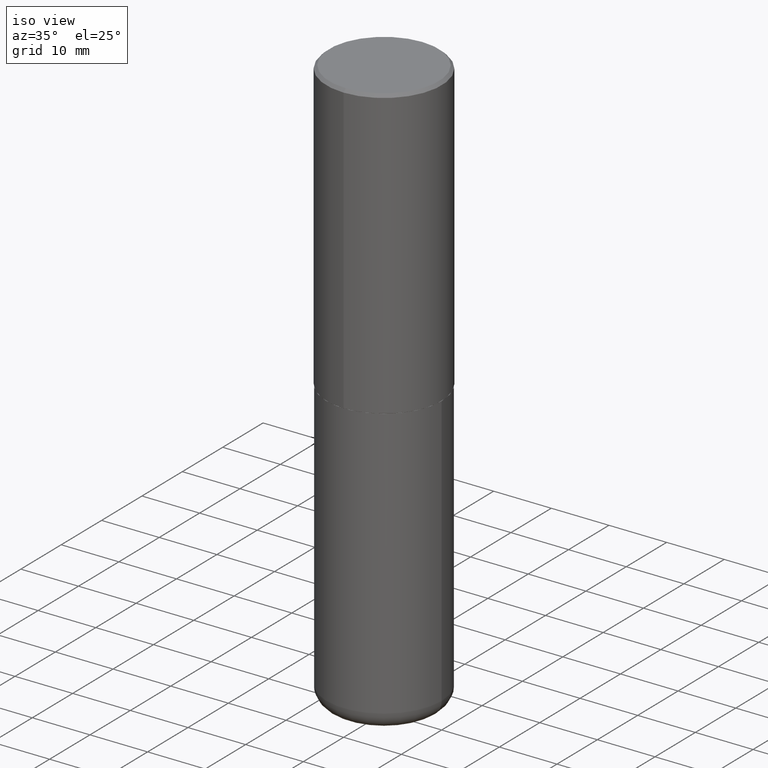
[diagram: clean part render]
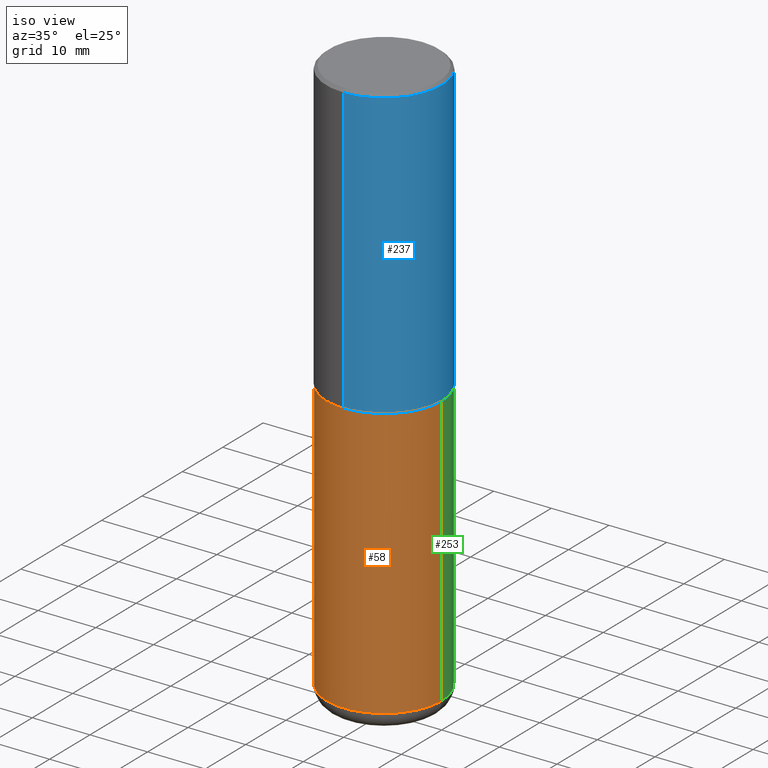
[diagram: same view with three faces highlighted in distinct colors, each labeled with its STEP entity id]
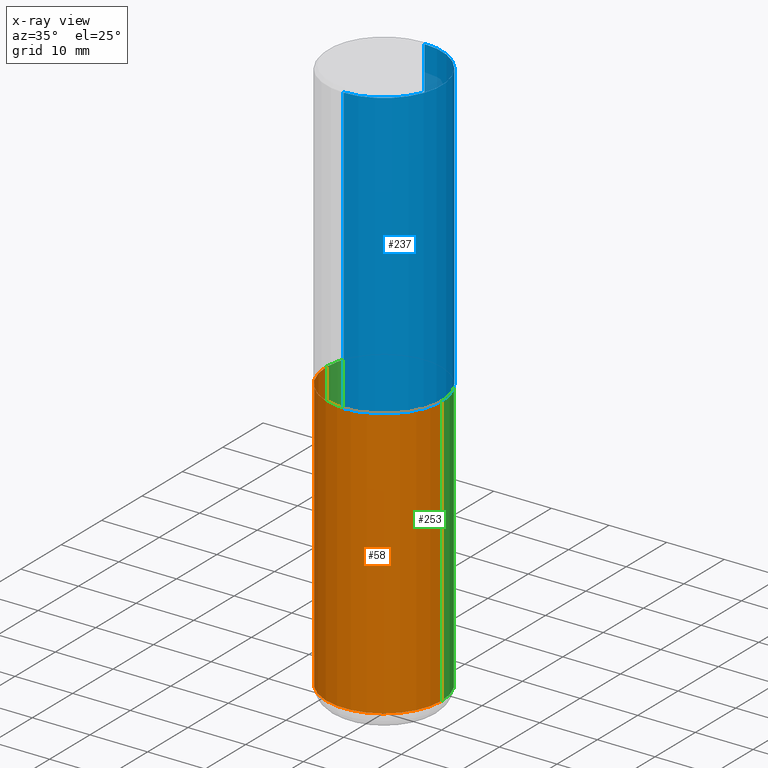
[diagram: x-ray of the same camera — body ghosted, the three highlighted faces saturated]
A machine part, iso view with three faces highlighted in distinct colors.
The next image is the same camera in x-ray (body ghosted, the three faces saturated) — at least one of them is partly hidden behind the body in this view.
Their STEP definitions:

[orange] entity #58 — the highlighted cylindrical surface (partial cylindrical patch) has radius 10 mm, axis along (-0, 0, 1).
#3 = LINE ( 'NONE', #74, #402 ) ;
#13 = CARTESIAN_POINT ( 'NONE',  ( 9.339000823940418668E-29, -1.333361808490808928E-14, -3.818900000000000183 ) ) ;
#31 = EDGE_CURVE ( 'NONE', #228, #99, #3, .T. ) ;
#47 = VERTEX_POINT ( 'NONE', #102 ) ;
#58 = ADVANCED_FACE ( 'NONE', ( #325 ), #155, .T. ) ;
#64 = EDGE_LOOP ( 'NONE', ( #373, #337, #68, #206 ) ) ;
#68 = ORIENTED_EDGE ( 'NONE', *, *, #31, .T. ) ;
#74 = CARTESIAN_POINT ( 'NONE',  ( 0.3937000000000000499, -2.749192406205083217E-15, 1.919750796630860172E-29 ) ) ;
#76 = DIRECTION ( 'NONE',  ( -2.445468806185136877E-29, 3.491481338843145188E-15, 1.000000000000000000 ) ) ;
#99 = VERTEX_POINT ( 'NONE', #169 ) ;
#102 = CARTESIAN_POINT ( 'NONE',  ( -0.3937000000000000499, -1.053621133422057529E-14, -3.818900000000000183 ) ) ;
#105 = DIRECTION ( 'NONE',  ( -2.445468806185136597E-29, 3.491481338843145583E-15, 1.000000000000000000 ) ) ;
#106 = VERTEX_POINT ( 'NONE', #370 ) ;
#122 = EDGE_CURVE ( 'NONE', #106, #99, #273, .T. ) ;
#124 = VECTOR ( 'NONE', #76, 39.37007874015748143 ) ;
#142 = CARTESIAN_POINT ( 'NONE',  ( 0.000000000000000000, 0.000000000000000000, 0.000000000000000000 ) ) ;
#155 = CYLINDRICAL_SURFACE ( 'NONE', #363, 0.3937000000000000499 ) ;
#162 = EDGE_CURVE ( 'NONE', #47, #106, #269, .T. ) ;
#169 = CARTESIAN_POINT ( 'NONE',  ( 0.3937000000000000499, -9.622173421717814924E-15, -1.968500000000000139 ) ) ;
#201 = EDGE_CURVE ( 'NONE', #47, #228, #305, .T. ) ;
#202 = CARTESIAN_POINT ( 'NONE',  ( 4.813905344975441835E-29, -6.872981015512731707E-15, -1.968500000000000139 ) ) ;
#206 = ORIENTED_EDGE ( 'NONE', *, *, #122, .F. ) ;
#207 = DIRECTION ( 'NONE',  ( 1.000000000000000000, -6.982962677686265133E-15, 0.000000000000000000 ) ) ;
#213 = AXIS2_PLACEMENT_3D ( 'NONE', #13, #397, #292 ) ;
#228 = VERTEX_POINT ( 'NONE', #366 ) ;
#235 = CARTESIAN_POINT ( 'NONE',  ( -0.3937000000000000499, 2.797406750687514786E-15, -1.936584745033356735E-29 ) ) ;
#269 = LINE ( 'NONE', #235, #124 ) ;
#273 = CIRCLE ( 'NONE', #328, 0.3937000000000000499 ) ;
#281 = DIRECTION ( 'NONE',  ( 1.000000000000000000, -6.982962677686265922E-15, 4.876176775795935793E-29 ) ) ;
#292 = DIRECTION ( 'NONE',  ( 1.000000000000000000, -6.982962677686267499E-15, 0.000000000000000000 ) ) ;
#305 = CIRCLE ( 'NONE', #213, 0.3937000000000000499 ) ;
#325 = FACE_OUTER_BOUND ( 'NONE', #64, .T. ) ;
#327 = DIRECTION ( 'NONE',  ( -2.445468806185136877E-29, 3.491481338843145188E-15, 1.000000000000000000 ) ) ;
#328 = AXIS2_PLACEMENT_3D ( 'NONE', #202, #364, #207 ) ;
#337 = ORIENTED_EDGE ( 'NONE', *, *, #201, .T. ) ;
#363 = AXIS2_PLACEMENT_3D ( 'NONE', #142, #105, #281 ) ;
#364 = DIRECTION ( 'NONE',  ( -2.445468806185136597E-29, 3.491481338843145583E-15, 1.000000000000000000 ) ) ;
#366 = CARTESIAN_POINT ( 'NONE',  ( 0.3937000000000000499, -1.608281049111317408E-14, -3.818900000000000183 ) ) ;
#370 = CARTESIAN_POINT ( 'NONE',  ( -0.3937000000000000499, -7.305892799522895709E-15, -1.968500000000000139 ) ) ;
#373 = ORIENTED_EDGE ( 'NONE', *, *, #162, .F. ) ;
#397 = DIRECTION ( 'NONE',  ( -2.445468806185136597E-29, 3.491481338843145583E-15, 1.000000000000000000 ) ) ;
#402 = VECTOR ( 'NONE', #327, 39.37007874015748143 ) ;

[blue] entity #237 — the highlighted cylindrical surface (partial cylindrical patch) has radius 10 mm, axis along (-0, 0, 1).
#9 = CARTESIAN_POINT ( 'NONE',  ( 2.797406750687515181E-15, 0.3937000000000001609, -1.373224176831512065E-15 ) ) ;
#17 = CARTESIAN_POINT ( 'NONE',  ( 4.816247846760815671E-29, -6.862632887772413316E-15, -1.967500000000000027 ) ) ;
#45 = ORIENTED_EDGE ( 'NONE', *, *, #204, .T. ) ;
#56 = CARTESIAN_POINT ( 'NONE',  ( -2.700978061722651252E-15, -0.3937000000000001054, -0.01999999999999870978 ) ) ;
#62 = CARTESIAN_POINT ( 'NONE',  ( 4.895804672692082949E-31, -6.975992770289649092E-17, -0.02000000000000008715 ) ) ;
#71 = VERTEX_POINT ( 'NONE', #413 ) ;
#95 = CARTESIAN_POINT ( 'NONE',  ( -2.749192406205036674E-15, -0.3937000000000070998, -1.967499999999998694 ) ) ;
#98 = EDGE_LOOP ( 'NONE', ( #45, #143, #330, #104 ) ) ;
#104 = ORIENTED_EDGE ( 'NONE', *, *, #324, .F. ) ;
#113 = DIRECTION ( 'NONE',  ( -2.447902336346030930E-29, 3.487996385144809360E-15, 1.000000000000000000 ) ) ;
#143 = ORIENTED_EDGE ( 'NONE', *, *, #218, .T. ) ;
#145 = DIRECTION ( 'NONE',  ( -2.447902336346030930E-29, 3.487996385144809755E-15, 1.000000000000000000 ) ) ;
#165 = VECTOR ( 'NONE', #113, 39.37007874015748143 ) ;
#172 = AXIS2_PLACEMENT_3D ( 'NONE', #62, #192, #318 ) ;
#192 = DIRECTION ( 'NONE',  ( -2.447902336346030930E-29, 3.487996385144809755E-15, 1.000000000000000000 ) ) ;
#198 = VERTEX_POINT ( 'NONE', #365 ) ;
#204 = EDGE_CURVE ( 'NONE', #300, #198, #418, .T. ) ;
#212 = DIRECTION ( 'NONE',  ( -6.982962677686265922E-15, -1.000000000000000000, 3.487996385144809360E-15 ) ) ;
#218 = EDGE_CURVE ( 'NONE', #198, #71, #274, .T. ) ;
#237 = ADVANCED_FACE ( 'NONE', ( #246 ), #416, .T. ) ;
#244 = LINE ( 'NONE', #412, #314 ) ;
#245 = DIRECTION ( 'NONE',  ( -2.447902336346030930E-29, 3.487996385144809360E-15, 1.000000000000000000 ) ) ;
#246 = FACE_OUTER_BOUND ( 'NONE', #98, .T. ) ;
#251 = VERTEX_POINT ( 'NONE', #56 ) ;
#268 = DIRECTION ( 'NONE',  ( -6.982962677686265922E-15, -1.000000000000000000, 3.469453890861393601E-15 ) ) ;
#274 = LINE ( 'NONE', #9, #165 ) ;
#300 = VERTEX_POINT ( 'NONE', #95 ) ;
#307 = CIRCLE ( 'NONE', #172, 0.3937000000000000499 ) ;
#314 = VECTOR ( 'NONE', #245, 39.37007874015748143 ) ;
#318 = DIRECTION ( 'NONE',  ( -6.982962677686265133E-15, -1.000000000000000000, 3.491137977679279424E-15 ) ) ;
#324 = EDGE_CURVE ( 'NONE', #300, #251, #244, .T. ) ;
#330 = ORIENTED_EDGE ( 'NONE', *, *, #398, .F. ) ;
#335 = AXIS2_PLACEMENT_3D ( 'NONE', #17, #145, #268 ) ;
#346 = CARTESIAN_POINT ( 'NONE',  ( 0.000000000000000000, 0.000000000000000000, 0.000000000000000000 ) ) ;
#365 = CARTESIAN_POINT ( 'NONE',  ( 2.797406750687540030E-15, 0.3936999999999934441, -1.967500000000001359 ) ) ;
#374 = DIRECTION ( 'NONE',  ( -2.447902336346030930E-29, 3.487996385144809755E-15, 1.000000000000000000 ) ) ;
#390 = AXIS2_PLACEMENT_3D ( 'NONE', #346, #374, #212 ) ;
#398 = EDGE_CURVE ( 'NONE', #251, #71, #307, .T. ) ;
#412 = CARTESIAN_POINT ( 'NONE',  ( -2.749192406205084005E-15, -0.3937000000000001609, 1.373224176831512065E-15 ) ) ;
#413 = CARTESIAN_POINT ( 'NONE',  ( 2.749192406205083217E-15, 0.3936999999999999389, -0.02000000000000146105 ) ) ;
#416 = CYLINDRICAL_SURFACE ( 'NONE', #390, 0.3937000000000001609 ) ;
#418 = CIRCLE ( 'NONE', #335, 0.3937000000000002720 ) ;

[green] entity #253 — the highlighted cylindrical surface (partial cylindrical patch) has radius 10 mm, axis along (-0, 0, 1).
#3 = LINE ( 'NONE', #74, #402 ) ;
#29 = CARTESIAN_POINT ( 'NONE',  ( 4.813905344975441835E-29, -6.872981015512731707E-15, -1.968500000000000139 ) ) ;
#31 = EDGE_CURVE ( 'NONE', #228, #99, #3, .T. ) ;
#47 = VERTEX_POINT ( 'NONE', #102 ) ;
#49 = ORIENTED_EDGE ( 'NONE', *, *, #31, .F. ) ;
#50 = DIRECTION ( 'NONE',  ( 1.000000000000000000, -6.982962677686267499E-15, 0.000000000000000000 ) ) ;
#59 = DIRECTION ( 'NONE',  ( 1.000000000000000000, -6.982962677686265133E-15, 0.000000000000000000 ) ) ;
#74 = CARTESIAN_POINT ( 'NONE',  ( 0.3937000000000000499, -2.749192406205083217E-15, 1.919750796630860172E-29 ) ) ;
#76 = DIRECTION ( 'NONE',  ( -2.445468806185136877E-29, 3.491481338843145188E-15, 1.000000000000000000 ) ) ;
#86 = AXIS2_PLACEMENT_3D ( 'NONE', #29, #153, #59 ) ;
#88 = DIRECTION ( 'NONE',  ( -2.445468806185136597E-29, 3.491481338843145583E-15, 1.000000000000000000 ) ) ;
#99 = VERTEX_POINT ( 'NONE', #169 ) ;
#102 = CARTESIAN_POINT ( 'NONE',  ( -0.3937000000000000499, -1.053621133422057529E-14, -3.818900000000000183 ) ) ;
#106 = VERTEX_POINT ( 'NONE', #370 ) ;
#124 = VECTOR ( 'NONE', #76, 39.37007874015748143 ) ;
#130 = DIRECTION ( 'NONE',  ( 1.000000000000000000, -6.982962677686265922E-15, 4.876176775795935793E-29 ) ) ;
#140 = EDGE_LOOP ( 'NONE', ( #232, #270, #399, #49 ) ) ;
#153 = DIRECTION ( 'NONE',  ( -2.445468806185136597E-29, 3.491481338843145583E-15, 1.000000000000000000 ) ) ;
#154 = CARTESIAN_POINT ( 'NONE',  ( 9.339000823940418668E-29, -1.333361808490808928E-14, -3.818900000000000183 ) ) ;
#162 = EDGE_CURVE ( 'NONE', #47, #106, #269, .T. ) ;
#169 = CARTESIAN_POINT ( 'NONE',  ( 0.3937000000000000499, -9.622173421717814924E-15, -1.968500000000000139 ) ) ;
#187 = FACE_OUTER_BOUND ( 'NONE', #140, .T. ) ;
#190 = AXIS2_PLACEMENT_3D ( 'NONE', #312, #309, #130 ) ;
#196 = AXIS2_PLACEMENT_3D ( 'NONE', #154, #88, #50 ) ;
#228 = VERTEX_POINT ( 'NONE', #366 ) ;
#232 = ORIENTED_EDGE ( 'NONE', *, *, #293, .T. ) ;
#235 = CARTESIAN_POINT ( 'NONE',  ( -0.3937000000000000499, 2.797406750687514786E-15, -1.936584745033356735E-29 ) ) ;
#253 = ADVANCED_FACE ( 'NONE', ( #187 ), #343, .T. ) ;
#260 = CIRCLE ( 'NONE', #86, 0.3937000000000000499 ) ;
#267 = EDGE_CURVE ( 'NONE', #99, #106, #260, .T. ) ;
#269 = LINE ( 'NONE', #235, #124 ) ;
#270 = ORIENTED_EDGE ( 'NONE', *, *, #162, .T. ) ;
#293 = EDGE_CURVE ( 'NONE', #228, #47, #376, .T. ) ;
#309 = DIRECTION ( 'NONE',  ( -2.445468806185136597E-29, 3.491481338843145583E-15, 1.000000000000000000 ) ) ;
#312 = CARTESIAN_POINT ( 'NONE',  ( 0.000000000000000000, 0.000000000000000000, 0.000000000000000000 ) ) ;
#327 = DIRECTION ( 'NONE',  ( -2.445468806185136877E-29, 3.491481338843145188E-15, 1.000000000000000000 ) ) ;
#343 = CYLINDRICAL_SURFACE ( 'NONE', #190, 0.3937000000000000499 ) ;
#366 = CARTESIAN_POINT ( 'NONE',  ( 0.3937000000000000499, -1.608281049111317408E-14, -3.818900000000000183 ) ) ;
#370 = CARTESIAN_POINT ( 'NONE',  ( -0.3937000000000000499, -7.305892799522895709E-15, -1.968500000000000139 ) ) ;
#376 = CIRCLE ( 'NONE', #196, 0.3937000000000000499 ) ;
#399 = ORIENTED_EDGE ( 'NONE', *, *, #267, .F. ) ;
#402 = VECTOR ( 'NONE', #327, 39.37007874015748143 ) ;